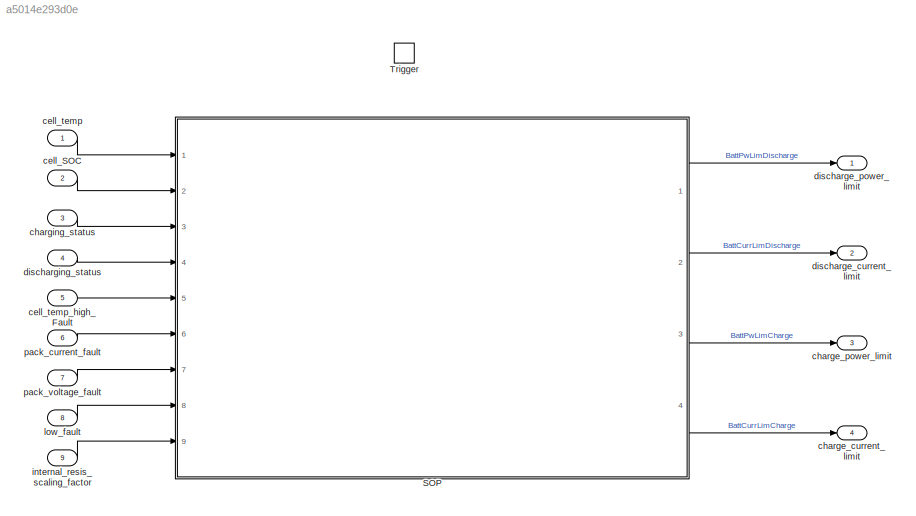
MODEL slx_a5014e293d0e
KIND model
CONFIG AbsTol = auto
CONFIG FixedStep = sopk_stepSize
CONFIG MaxStep = auto
CONFIG MinStep = auto
CONFIG RelTol = 1e-3
CONFIG SampleTimeConstraint = Unconstrained
CONFIG Solver = FixedStepAuto
CONFIG SolverMode = Auto
CONFIG SolverName = FixedStepAuto
CONFIG StartTime = 0.0
CONFIG StopTime = 10.0
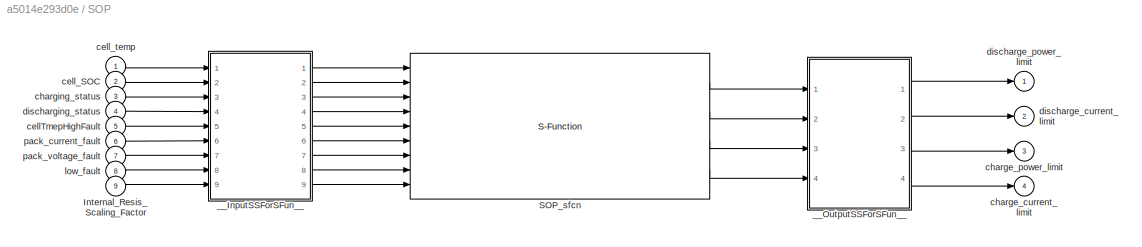
BLOCK [SubSystem] SOP
  Ports = [9, 4]
  RequestExecContextInheritance = off
  Variant = off
BLOCK [Inport] SOP/Internal_Resis_Scaling_Factor
  IconDisplay = Port number
  Port = 9
BLOCK [S-Function] SOP/SOP_sfcn
  CopyFcn = if ~strcmp(get_param(gcb,'Linkstatus'),'none') && ...\n~strcmp(get_param(gcb,'Linkstatus'),'implicit')      \n  set_param(gcb,'LinkStatus','none');                \nend
  EnableBusSupport = off
  FunctionName = SOP_sf
  Parameters = sfcnParam1, sfcnParam2, sfcnParam3, sfcnParam4, sfcnParam5, sfcnParam6, sfcnParam7, sfcnParam8, sfcnParam9, sfcnParam10, sfcnParam11, sfcnParam12, sfcnParam13, sfcnParam14, sfcnParam15, sfcnParam16
  Ports = [9, 4]
  SFunctionDeploymentMode = off
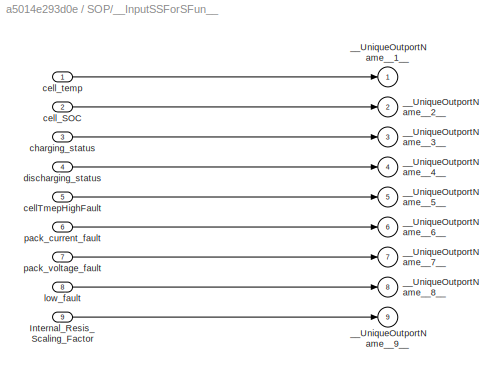
BLOCK [SubSystem] SOP/__InputSSForSFun__
  PermitHierarchicalResolution = ExplicitOnly
  Ports = [9, 9]
  RequestExecContextInheritance = off
  Variant = off
BLOCK [Inport] SOP/__InputSSForSFun__/Internal_Resis_Scaling_Factor
  IconDisplay = Port number
  Port = 9
BLOCK [Outport] SOP/__InputSSForSFun__/__UniqueOutportName__1__
  IconDisplay = Port number
BLOCK [Outport] SOP/__InputSSForSFun__/__UniqueOutportName__2__
  IconDisplay = Port number
  Port = 2
BLOCK [Outport] SOP/__InputSSForSFun__/__UniqueOutportName__3__
  IconDisplay = Port number
  Port = 3
BLOCK [Outport] SOP/__InputSSForSFun__/__UniqueOutportName__4__
  IconDisplay = Port number
  Port = 4
BLOCK [Outport] SOP/__InputSSForSFun__/__UniqueOutportName__5__
  IconDisplay = Port number
  Port = 5
BLOCK [Outport] SOP/__InputSSForSFun__/__UniqueOutportName__6__
  IconDisplay = Port number
  Port = 6
BLOCK [Outport] SOP/__InputSSForSFun__/__UniqueOutportName__7__
  IconDisplay = Port number
  Port = 7
BLOCK [Outport] SOP/__InputSSForSFun__/__UniqueOutportName__8__
  IconDisplay = Port number
  Port = 8
BLOCK [Outport] SOP/__InputSSForSFun__/__UniqueOutportName__9__
  IconDisplay = Port number
  Port = 9
BLOCK [Inport] SOP/__InputSSForSFun__/cellTmepHighFault
  IconDisplay = Port number
  OutDataTypeStr = uint8
  Port = 5
BLOCK [Inport] SOP/__InputSSForSFun__/cell_SOC
  IconDisplay = Port number
  Port = 2
BLOCK [Inport] SOP/__InputSSForSFun__/cell_temp
  IconDisplay = Port number
BLOCK [Inport] SOP/__InputSSForSFun__/charging_status
  IconDisplay = Port number
  Port = 3
BLOCK [Inport] SOP/__InputSSForSFun__/discharging_status
  IconDisplay = Port number
  Port = 4
BLOCK [Inport] SOP/__InputSSForSFun__/low_fault
  IconDisplay = Port number
  OutDataTypeStr = uint8
  Port = 8
BLOCK [Inport] SOP/__InputSSForSFun__/pack_current_fault
  IconDisplay = Port number
  OutDataTypeStr = uint8
  Port = 6
BLOCK [Inport] SOP/__InputSSForSFun__/pack_voltage_fault
  IconDisplay = Port number
  OutDataTypeStr = uint8
  Port = 7
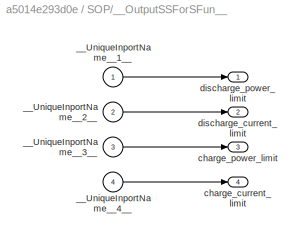
BLOCK [SubSystem] SOP/__OutputSSForSFun__
  PermitHierarchicalResolution = ExplicitOnly
  Ports = [4, 4]
  RequestExecContextInheritance = off
  Variant = off
BLOCK [Inport] SOP/__OutputSSForSFun__/__UniqueInportName__1__
  IconDisplay = Port number
BLOCK [Inport] SOP/__OutputSSForSFun__/__UniqueInportName__2__
  IconDisplay = Port number
  Port = 2
BLOCK [Inport] SOP/__OutputSSForSFun__/__UniqueInportName__3__
  IconDisplay = Port number
  Port = 3
BLOCK [Inport] SOP/__OutputSSForSFun__/__UniqueInportName__4__
  IconDisplay = Port number
  Port = 4
BLOCK [Outport] SOP/__OutputSSForSFun__/charge_current_limit
  IconDisplay = Port number
  Port = 4
BLOCK [Outport] SOP/__OutputSSForSFun__/charge_power_limit
  IconDisplay = Port number
  Port = 3
BLOCK [Outport] SOP/__OutputSSForSFun__/discharge_current_limit
  IconDisplay = Port number
  Port = 2
BLOCK [Outport] SOP/__OutputSSForSFun__/discharge_power_limit
  IconDisplay = Port number
BLOCK [Inport] SOP/cellTmepHighFault
  IconDisplay = Port number
  OutDataTypeStr = uint8
  Port = 5
BLOCK [Inport] SOP/cell_SOC
  IconDisplay = Port number
  Port = 2
BLOCK [Inport] SOP/cell_temp
  IconDisplay = Port number
BLOCK [Outport] SOP/charge_current_limit
  IconDisplay = Port number
  Port = 4
BLOCK [Outport] SOP/charge_power_limit
  IconDisplay = Port number
  Port = 3
BLOCK [Inport] SOP/charging_status
  IconDisplay = Port number
  Port = 3
BLOCK [Outport] SOP/discharge_current_limit
  IconDisplay = Port number
  Port = 2
BLOCK [Outport] SOP/discharge_power_limit
  IconDisplay = Port number
BLOCK [Inport] SOP/discharging_status
  IconDisplay = Port number
  Port = 4
BLOCK [Inport] SOP/low_fault
  IconDisplay = Port number
  OutDataTypeStr = uint8
  Port = 8
BLOCK [Inport] SOP/pack_current_fault
  IconDisplay = Port number
  OutDataTypeStr = uint8
  Port = 6
BLOCK [Inport] SOP/pack_voltage_fault
  IconDisplay = Port number
  OutDataTypeStr = uint8
  Port = 7
BLOCK [TriggerPort] Trigger
  PortDimensions = 1
  Ports = []
  StatesWhenEnabling = held
  TriggerType = function-call
BLOCK [Inport] cell_SOC
  IconDisplay = Port number
  Port = 2
  PortDimensions = 40
BLOCK [Inport] cell_temp
  IconDisplay = Port number
  PortDimensions = 40
BLOCK [Inport] cell_temp_high_Fault
  IconDisplay = Port number
  Port = 5
BLOCK [Outport] charge_current_limit
  IconDisplay = Port number
  Port = 4
BLOCK [Outport] charge_power_limit
  IconDisplay = Port number
  Port = 3
BLOCK [Inport] charging_status
  IconDisplay = Port number
  Port = 3
BLOCK [Outport] discharge_current_limit
  IconDisplay = Port number
  Port = 2
BLOCK [Outport] discharge_power_limit
  IconDisplay = Port number
BLOCK [Inport] discharging_status
  IconDisplay = Port number
  Port = 4
BLOCK [Inport] internal_resis_scaling_factor
  IconDisplay = Port number
  Port = 9
  PortDimensions = 40
BLOCK [Inport] low_fault
  IconDisplay = Port number
  Port = 8
BLOCK [Inport] pack_current_fault
  IconDisplay = Port number
  Port = 6
BLOCK [Inport] pack_voltage_fault
  IconDisplay = Port number
  Port = 7
LINE SOP/Internal_Resis_Scaling_Factor:1 -> SOP/__InputSSForSFun__:9
LINE SOP/SOP_sfcn:1 -> SOP/__OutputSSForSFun__:1
LINE SOP/SOP_sfcn:2 -> SOP/__OutputSSForSFun__:2
LINE SOP/SOP_sfcn:3 -> SOP/__OutputSSForSFun__:3
LINE SOP/SOP_sfcn:4 -> SOP/__OutputSSForSFun__:4
LINE SOP/__InputSSForSFun__/Internal_Resis_Scaling_Factor:1 -> SOP/__InputSSForSFun__/__UniqueOutportName__9__:1
LINE SOP/__InputSSForSFun__/cellTmepHighFault:1 -> SOP/__InputSSForSFun__/__UniqueOutportName__5__:1
LINE SOP/__InputSSForSFun__/cell_SOC:1 -> SOP/__InputSSForSFun__/__UniqueOutportName__2__:1
LINE SOP/__InputSSForSFun__/cell_temp:1 -> SOP/__InputSSForSFun__/__UniqueOutportName__1__:1
LINE SOP/__InputSSForSFun__/charging_status:1 -> SOP/__InputSSForSFun__/__UniqueOutportName__3__:1
LINE SOP/__InputSSForSFun__/discharging_status:1 -> SOP/__InputSSForSFun__/__UniqueOutportName__4__:1
LINE SOP/__InputSSForSFun__/low_fault:1 -> SOP/__InputSSForSFun__/__UniqueOutportName__8__:1
LINE SOP/__InputSSForSFun__/pack_current_fault:1 -> SOP/__InputSSForSFun__/__UniqueOutportName__6__:1
LINE SOP/__InputSSForSFun__/pack_voltage_fault:1 -> SOP/__InputSSForSFun__/__UniqueOutportName__7__:1
LINE SOP/__InputSSForSFun__:1 -> SOP/SOP_sfcn:1
LINE SOP/__InputSSForSFun__:2 -> SOP/SOP_sfcn:2
LINE SOP/__InputSSForSFun__:3 -> SOP/SOP_sfcn:3
LINE SOP/__InputSSForSFun__:4 -> SOP/SOP_sfcn:4
LINE SOP/__InputSSForSFun__:5 -> SOP/SOP_sfcn:5
LINE SOP/__InputSSForSFun__:6 -> SOP/SOP_sfcn:6
LINE SOP/__InputSSForSFun__:7 -> SOP/SOP_sfcn:7
LINE SOP/__InputSSForSFun__:8 -> SOP/SOP_sfcn:8
LINE SOP/__InputSSForSFun__:9 -> SOP/SOP_sfcn:9
LINE SOP/__OutputSSForSFun__/__UniqueInportName__1__:1 -> SOP/__OutputSSForSFun__/discharge_power_limit:1
LINE SOP/__OutputSSForSFun__/__UniqueInportName__2__:1 -> SOP/__OutputSSForSFun__/discharge_current_limit:1
LINE SOP/__OutputSSForSFun__/__UniqueInportName__3__:1 -> SOP/__OutputSSForSFun__/charge_power_limit:1
LINE SOP/__OutputSSForSFun__/__UniqueInportName__4__:1 -> SOP/__OutputSSForSFun__/charge_current_limit:1
LINE SOP/__OutputSSForSFun__:1 -> SOP/discharge_power_limit:1
LINE SOP/__OutputSSForSFun__:2 -> SOP/discharge_current_limit:1
LINE SOP/__OutputSSForSFun__:3 -> SOP/charge_power_limit:1
LINE SOP/__OutputSSForSFun__:4 -> SOP/charge_current_limit:1
LINE SOP/cellTmepHighFault:1 -> SOP/__InputSSForSFun__:5
LINE SOP/cell_SOC:1 -> SOP/__InputSSForSFun__:2
LINE SOP/cell_temp:1 -> SOP/__InputSSForSFun__:1
LINE SOP/charging_status:1 -> SOP/__InputSSForSFun__:3
LINE SOP/discharging_status:1 -> SOP/__InputSSForSFun__:4
LINE SOP/low_fault:1 -> SOP/__InputSSForSFun__:8
LINE SOP/pack_current_fault:1 -> SOP/__InputSSForSFun__:6
LINE SOP/pack_voltage_fault:1 -> SOP/__InputSSForSFun__:7
LINE SOP:1 -> discharge_power_limit:1
LINE SOP:2 -> discharge_current_limit:1
LINE SOP:3 -> charge_power_limit:1
LINE SOP:4 -> charge_current_limit:1
LINE cell_SOC:1 -> SOP:2
LINE cell_temp:1 -> SOP:1
LINE cell_temp_high_Fault:1 -> SOP:5
LINE charging_status:1 -> SOP:3
LINE discharging_status:1 -> SOP:4
LINE internal_resis_scaling_factor:1 -> SOP:9
LINE low_fault:1 -> SOP:8
LINE pack_current_fault:1 -> SOP:6
LINE pack_voltage_fault:1 -> SOP:7
